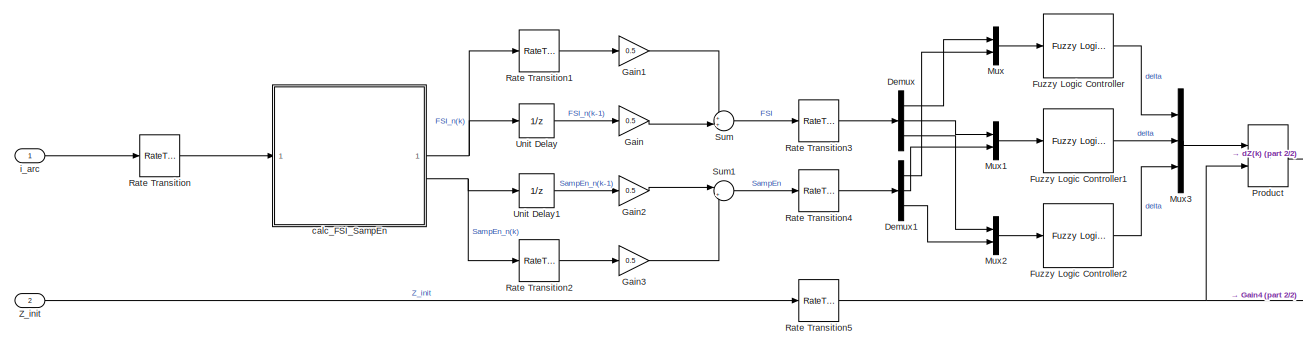
[diagram: root canvas - part 1/2, center side, full height]
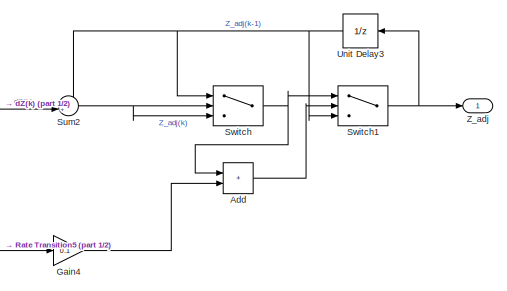
[diagram: root canvas - part 2/2, right side, full height]
MODEL slx_1b265c3e2cd9
KIND model
CONFIG AbsTol = auto
CONFIG EnableMultiTasking = off
CONFIG FixedStep = Ts_local
CONFIG MaxStep = auto
CONFIG MinStep = auto
CONFIG RelTol = 1e-3
CONFIG SampleTimeConstraint = Unconstrained
CONFIG SolverName = ode14x
CONFIG StartTime = 0.0
CONFIG StopTime = 10.0
WORKSPACE source: mxarray member
WORKSPACE FSI_max = [111.58614649 109.244229433 111.951462771]
WORKSPACE FSI_min = [3.65502707696 3.64264743495 3.42913459589]
WORKSPACE K1 = 1
WORKSPACE K2 = 1e-06
WORKSPACE Ncycle = 25
WORKSPACE SampEn_max = [0.399850516102 0.373441099122 0.45958437331]
WORKSPACE SampEn_min = [0.118794892672 0.117721768048 0.119599512992]
WORKSPACE fs = 5000
WORKSPACE m = 2
WORKSPACE rRatio = 0.2
BLOCK [Sum] Add
  IconShape = rectangular
BLOCK [Demux] Demux
  Outputs = 3
BLOCK [Demux] Demux1
  Outputs = 3
BLOCK [Reference] Fuzzy Logic Controller  REF=fuzblock/Fuzzy Logic   (lib defined in mdl_858b3b3e7478)
Controller
  SourceBlock = fuzblock/Fuzzy Logic \nController
  SourceType = Fuzzy Inference System
BLOCK [Reference] Fuzzy Logic Controller1  REF=fuzblock/Fuzzy Logic   (lib defined in mdl_858b3b3e7478)
Controller
  SourceBlock = fuzblock/Fuzzy Logic \nController
  SourceType = Fuzzy Inference System
BLOCK [Reference] Fuzzy Logic Controller2  REF=fuzblock/Fuzzy Logic   (lib defined in mdl_858b3b3e7478)
Controller
  SourceBlock = fuzblock/Fuzzy Logic \nController
  SourceType = Fuzzy Inference System
BLOCK [Gain] Gain
  Gain = 0.5
BLOCK [Gain] Gain1
  Gain = 0.5
BLOCK [Gain] Gain2
  Gain = 0.5
BLOCK [Gain] Gain3
  Gain = 0.5
BLOCK [Gain] Gain4
  Gain = 0.1
BLOCK [Mux] Mux
  DisplayOption = bar
  Inputs = 2
BLOCK [Mux] Mux1
  DisplayOption = bar
  Inputs = 2
BLOCK [Mux] Mux2
  DisplayOption = bar
  Inputs = 2
BLOCK [Mux] Mux3
  DisplayOption = bar
  Inputs = 3
BLOCK [Product] Product
BLOCK [RateTransition] Rate Transition
  OutPortSampleTime = 1 / fs
BLOCK [RateTransition] Rate Transition1
  OutPortSampleTime = Ncycle * (1 / f)
BLOCK [RateTransition] Rate Transition2
  OutPortSampleTime = Ncycle * (1 / f)
BLOCK [RateTransition] Rate Transition3
  OutPortSampleTime = Ts_sup
BLOCK [RateTransition] Rate Transition4
  OutPortSampleTime = Ts_sup
BLOCK [RateTransition] Rate Transition5
  OutPortSampleTime = Ts_sup
BLOCK [Sum] Sum
  Inputs = ++|
BLOCK [Sum] Sum1
  Inputs = |++
BLOCK [Sum] Sum2
  Inputs = ++|
BLOCK [Switch] Switch
  Criteria = u2 > Threshold
  InputSameDT = off
  SaturateOnIntegerOverflow = off
BLOCK [Switch] Switch1
  Criteria = u2 > Threshold
  InputSameDT = off
  SaturateOnIntegerOverflow = off
BLOCK [UnitDelay] Unit Delay
  HasFrameUpgradeWarning = on
  SampleTime = Ncycle * (1 / f)
BLOCK [UnitDelay] Unit Delay1
  HasFrameUpgradeWarning = on
  SampleTime = Ncycle * (1 / f)
BLOCK [UnitDelay] Unit Delay3
  HasFrameUpgradeWarning = on
  NameLocation = top
  SampleTime = -1
BLOCK [Outport] Z_adj
BLOCK [Inport] Z_init
  Port = 2
  PortDimensions = [3 1]
  SampleTime = Ts_ctrl
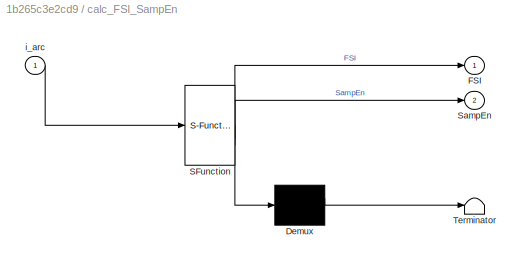
BLOCK [SubSystem] calc_FSI_SampEn
  ErrorFcn = Stateflow.Translate.translate
  PermitHierarchicalResolution = ExplicitOnly
  SFBlockType = MATLAB Function
  SystemSampleTime = 1 / fs
  TreatAsAtomicUnit = on
BLOCK [Demux] calc_FSI_SampEn/ Demux 
  Outputs = 1
BLOCK [S-Function] calc_FSI_SampEn/ SFunction 
  EnableBusSupport = off
  FunctionName = sf_sfun
  Parameters = FSI_max,FSI_min,K1,K2,Ncycle,SampEn_max,SampEn_min,f,fs,m,rRatio
  PortCounts = [1 3]
  SFcnIsStateOwnerBlock = off
  SFunctionDeploymentMode = off
  Tag = Stateflow S-Function 2
BLOCK [Terminator] calc_FSI_SampEn/ Terminator 
BLOCK [Outport] calc_FSI_SampEn/FSI
BLOCK [Outport] calc_FSI_SampEn/SampEn
  Port = 2
BLOCK [Inport] calc_FSI_SampEn/i_arc
BLOCK [Inport] i_arc
  SampleTime = Ts_local
LINE Add:1 -> Switch1:2
LINE Demux1:1 -> Mux:2
LINE Demux1:2 -> Mux1:2
LINE Demux1:3 -> Mux2:2
LINE Demux:1 -> Mux:1
LINE Demux:2 -> Mux1:1
LINE Demux:3 -> Mux2:1
LINE Fuzzy Logic Controller1:1 -> Mux3:2
LINE Fuzzy Logic Controller2:1 -> Mux3:3
LINE Fuzzy Logic Controller:1 -> Mux3:1
LINE Gain1:1 -> Sum:1
LINE Gain2:1 -> Sum1:1
LINE Gain3:1 -> Sum1:2
LINE Gain4:1 -> Add:2
LINE Gain:1 -> Sum:2
LINE Mux1:1 -> Fuzzy Logic Controller1:1
LINE Mux2:1 -> Fuzzy Logic Controller2:1
LINE Mux3:1 -> Product:1
LINE Mux:1 -> Fuzzy Logic Controller:1
LINE Product:1 -> Sum2:2
LINE Rate Transition1:1 -> Gain1:1
LINE Rate Transition2:1 -> Gain3:1
LINE Rate Transition3:1 -> Demux:1
LINE Rate Transition4:1 -> Demux1:1
NET Rate Transition5:1 -> Gain4:1, Product:2
LINE Rate Transition:1 -> calc_FSI_SampEn:1
LINE Sum1:1 -> Rate Transition4:1
NET Sum2:1 -> Switch:2, Switch:3
LINE Sum:1 -> Rate Transition3:1
NET Switch1:1 -> Unit Delay3:1, Z_adj:1
NET Switch:1 -> Add:1, Switch1:1
LINE Unit Delay1:1 -> Gain2:1
NET Unit Delay3:1 -> Sum2:1, Switch1:3, Switch:1
LINE Unit Delay:1 -> Gain:1
LINE Z_init:1 -> Rate Transition5:1
NET calc_FSI_SampEn:1 -> Rate Transition1:1, Unit Delay:1
NET calc_FSI_SampEn:2 -> Rate Transition2:1, Unit Delay1:1
LINE i_arc:1 -> Rate Transition:1
note: NET lines group one-source signal fan-out (src -> all destinations, sorted); 1:1 wires keep LINE
CHART calc_FSI_SampEn states=1 transitions=1
  STATE_LABEL 'eML_blk_kernel()'
  STATE_LABEL 'SCRIPT:\nfunction [FSI, SampEn] = calc_FSI_SampEn( ...\n    i_arc, K1, K2, fs, Ncycle, f, m, rRatio, ...\n    FSI_max, FSI_min, SampEn_max, SampEn_min)\n%#codegen\n% i_arc   : 3x1 instantaneous arc current [ia; ib; ic]\n% FSI     : 3x1 normalized FSI of three phases\n% SampEn  : 3x1 normalized sample entropy of three phases\n%\n% This version:\n% 1) stores samples every call,\n% 2) computes features only onc...<+3608ch>'
CHART  states=0 transitions=0
